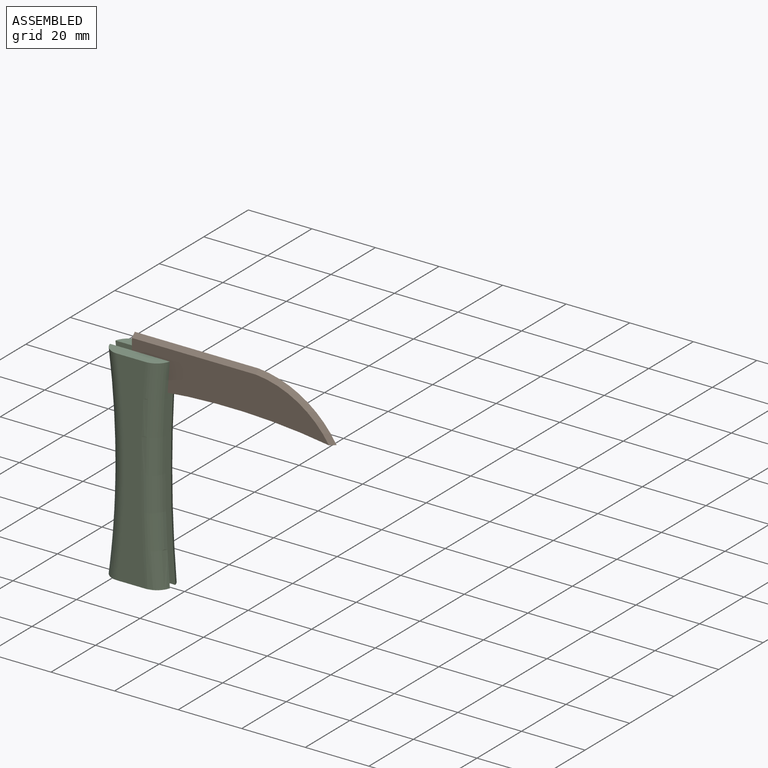
[diagram: assembled view]
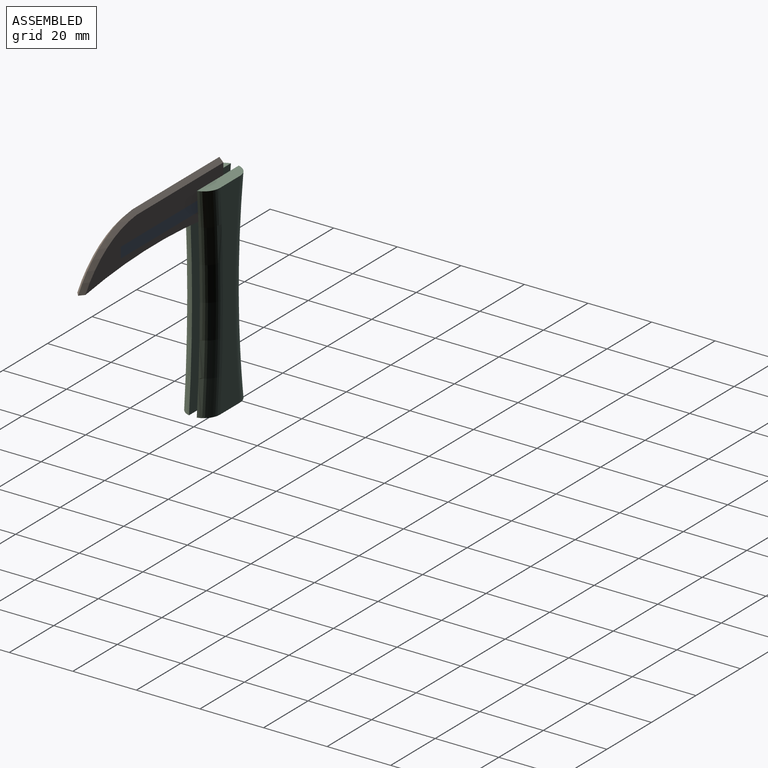
[diagram: assembled view, second angle]
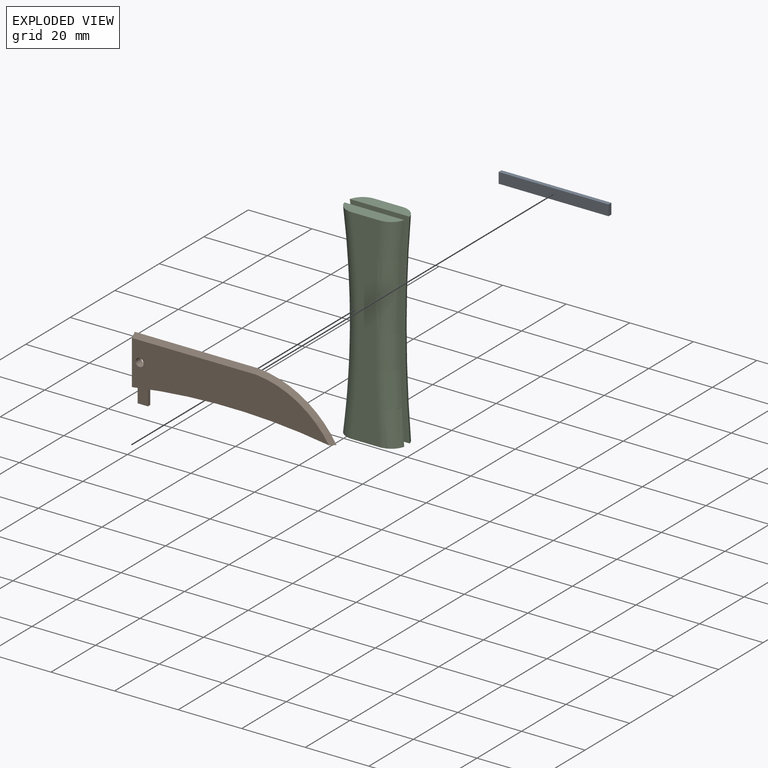
[diagram: exploded view]
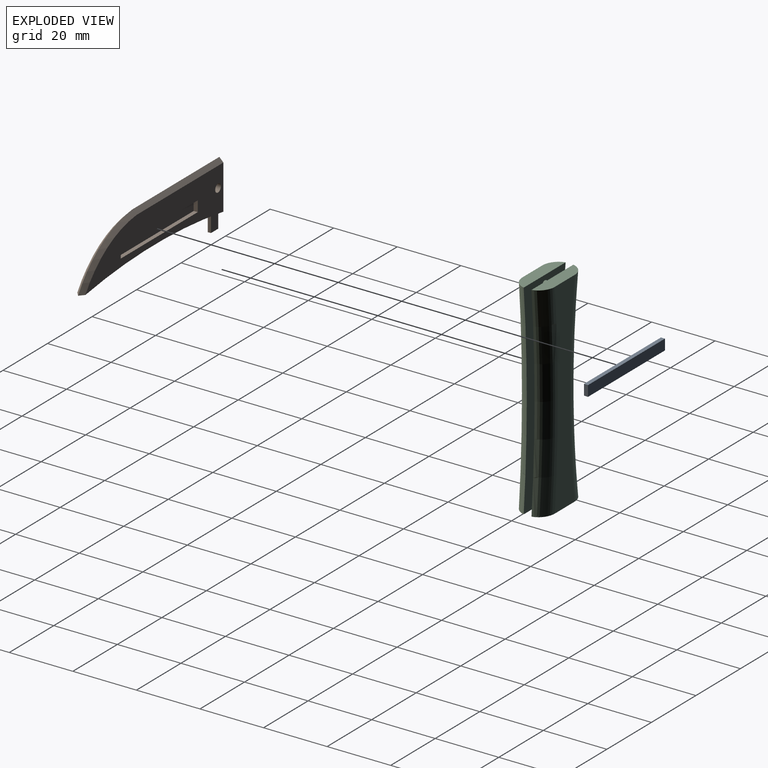
[diagram: exploded view, second angle]
ASSEMBLY  parts=3 mates=2
PART A: 6 faces, bbox 3.3x1.3x34.6 mm
  f0: plane 3.35x1.27mm, normal (0,0,1), area 4.3mm2, adj f1,f3,f4,f5
  f1: plane 34.57x1.27mm, normal (-1,0,0), area 43.9mm2, adj f0,f2,f4,f5
  f2: plane 3.35x1.27mm, normal (0,0,-1), area 4.3mm2, adj f1,f3,f4,f5
  f3: plane 34.57x1.27mm, normal (1,0,0), area 43.9mm2, adj f0,f2,f4,f5
  f4: plane 34.57x3.35mm, normal (0,-1,0), area 115.7mm2, adj f0,f1,f2,f3
  f5: plane 34.57x3.35mm, normal (0,1,0), area 115.7mm2, adj f0,f1,f2,f3
PART B: 20 faces, bbox 19.8x2.6x63.5 mm
  f0: cylinder r=198.74mm len=62.01mm, axis (0,1,0), area 154.8mm2, adj f2,f3,f4,f5,f15,f16,f17,f18
  f1: cylinder r=1.27mm len=2.54mm, axis (0,1,0), area 20.3mm2, adj f2,f3
  f2: plane 62.01x13.97mm, normal (0,1,0), area 656.8mm2, adj f0,f1,f4,f6,f7
  f3: plane 62.01x13.97mm, normal (0,-1,0), area 541mm2, adj f0,f1,f4,f8,f9,f10,f11,f12
  f4: plane 15.24x2.54mm, normal (0,0,-1), area 37.1mm2, adj f0,f2,f3,f6,f8
  f5: plane 2.56x1.51mm, normal (-1,0,0), area 1.9mm2, adj f0,f7,f9
  f6: plane 39.07x1.27mm, normal (0.71,0.71,0), area 70.1mm2, adj f2,f4,f7,f8
  f7: cone r=31.67mm half-angle=45deg, axis (0,-1,0), area 51.9mm2, adj f2,f5,f6,f9
  f8: plane 39.07x1.27mm, normal (0.71,-0.71,0), area 70.1mm2, adj f3,f4,f6,f9
  f9: cone r=30.4mm half-angle=45deg, axis (0,1,0), area 51.9mm2, adj f3,f5,f7,f8
  f10: plane 34.57x1.27mm, normal (1,0,0), area 43.9mm2, adj f3,f11,f13,f14
  f11: plane 3.35x1.27mm, normal (0,0,1), area 4.3mm2, adj f3,f10,f12,f14
  f12: plane 34.57x1.27mm, normal (-1,0,0), area 43.9mm2, adj f3,f11,f13,f14
  f13: plane 3.35x1.27mm, normal (0,0,-1), area 4.3mm2, adj f3,f10,f12,f14
  f14: plane 34.57x3.35mm, normal (0,-1,0), area 115.7mm2, adj f10,f11,f12,f13
  f15: plane 5.23x1.02mm, normal (0,0,1), area 5.3mm2, adj f0,f16,f17,f19
  f16: plane 5.23x3.26mm, normal (0,1,0), area 16.3mm2, adj f0,f15,f18,f19
  f17: plane 5.23x3.26mm, normal (0,-1,0), area 16.3mm2, adj f0,f15,f18,f19
  f18: plane 4.77x1.02mm, normal (0,0,-1), area 4.8mm2, adj f0,f16,f17,f19
  f19: plane 3.26x1.02mm, normal (-1,0,0), area 3.3mm2, adj f15,f16,f17,f18
PART C: 19 faces, bbox 19.3x10.3x67.5 mm
  f0: cylinder r=1.27mm len=2.54mm, axis (0,1,0), area 0.4mm2, adj f5,f13
  f1: cylinder r=1.27mm len=2.54mm, axis (0,1,0), area 0.4mm2, adj f5,f12
  f2: plane 64.47x8.92mm, normal (0,1,0), area 426.1mm2, adj f3,f4,f17,f18
  f3: plane 19.02x4.03mm, normal (0,0,-1), area 62.8mm2, adj f2,f5,f17,f18
  f4: plane 19.02x4.03mm, normal (0,0,1), area 62.8mm2, adj f2,f5,f17,f18
  f5: plane 64.47x18.84mm, normal (0,-1,0), area 1045.7mm2, adj f0,f1,f3,f4,f10,f11,f17,f18
  f6: plane 64.47x8.92mm, normal (0,-1,0), area 426.1mm2, adj f7,f8,f16,f17
  f7: plane 19.02x4.03mm, normal (0,0,1), area 62.8mm2, adj f6,f9,f16,f17
  f8: plane 19.02x4.03mm, normal (0,0,-1), area 62.8mm2, adj f6,f9,f16,f17
  f9: plane 64.48x18.86mm, normal (0,1,0), area 1045.6mm2, adj f7,f8,f10,f11,f14,f15,f16,f17
  f10: cylinder r=1.27mm len=2.53mm, axis (0,1,0), area 9.3mm2, adj f5,f9,f17
  f11: cylinder r=1.27mm len=2.54mm, axis (0,1,0), area 19.6mm2, adj f5,f9
  f12: plane 2.54x2.54mm, normal (0,-1,0), area 5.1mm2, adj f1
  f13: plane 2.54x2.54mm, normal (0,-1,0), area 5.1mm2, adj f0
  f14: plane 2.55x2.55mm, normal (0,1,0), area 5.1mm2, adj f9
  f15: plane 2.55x2.55mm, normal (0,1,0), area 5.1mm2, adj f9
  f16: torus R=380.93mm, axis (0,-1,0), area 434.6mm2, adj f6,f7,f8,f9
  f17: torus R=248.13mm, axis (0,-1,0), area 876.5mm2, adj f2,f3,f4,f5,f6,f7,f8,f9
  f18: torus R=380.93mm, axis (0,-1,0), area 434.6mm2, adj f2,f3,f4,f5
PLACE A rot(axis=(0,-1,0),90deg) t=(63.36,19.33,40.97)mm
PLACE B rot(axis=(-0.71,0,-0.71),180deg) t=(5.69,18.06,40.97)mm
PLACE C t=(8.1,18.06,43.78)mm
MATE revolute B.f1 <-> C.f11  axis (0,1,0) through (8.1,19.33,40.97)mm
MATE fastened B.f14 <-> A.f4  axis (0,1,0) through (34.53,18.06,39.29)mm
